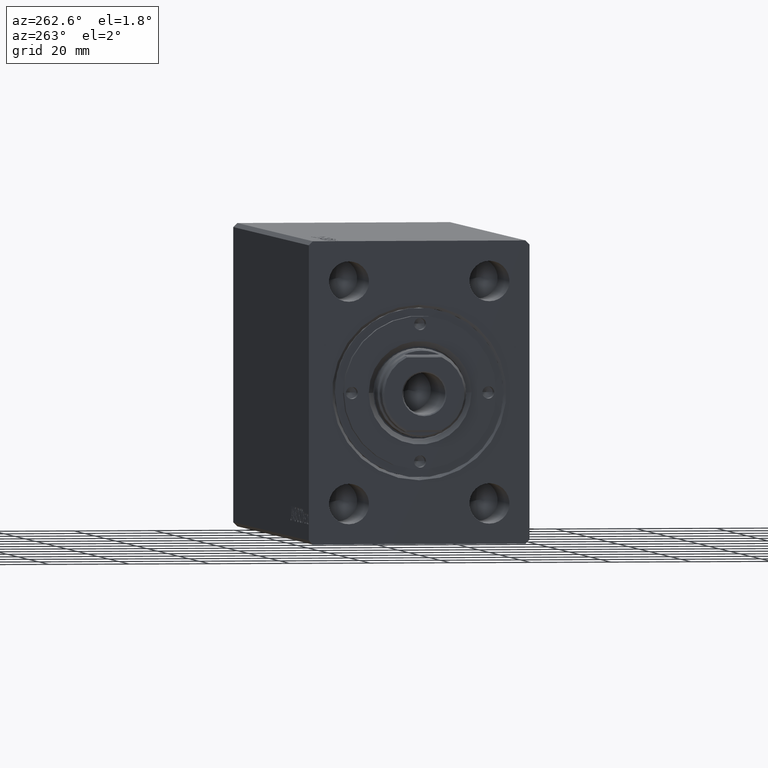
[diagram: clean part render]
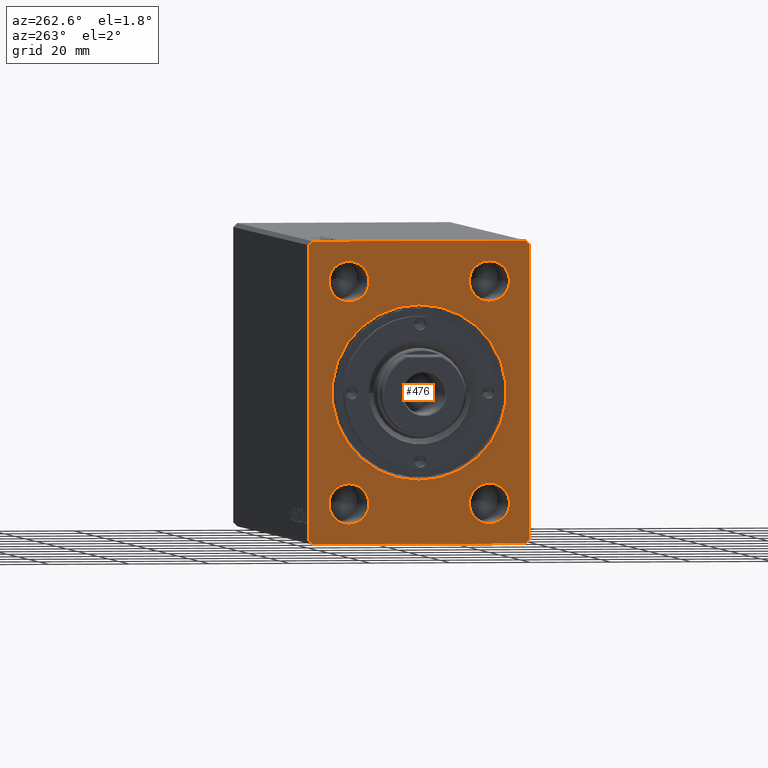
[diagram: same view with one face highlighted and labeled with its STEP entity id]
A machine part, auxiliary view. The second image highlights one B-rep face of the part: STEP entity #476.
In plain terms, the highlighted planar face has unit normal (1, 0, 0).
Its self-contained STEP definition (entity closure, byte-faithful):
#98 = VERTEX_POINT ( 'NONE', #12502 ) ;
#430 = CIRCLE ( 'NONE', #9714, 4.999999999999997335 ) ;
#476 = ADVANCED_FACE ( 'NONE', ( #17090, #43468, #37418, #13553, #20235, #6417 ), #6633, .F. ) ;
#971 = CARTESIAN_POINT ( 'NONE',  ( 1.224646799147350495E-16, 17.50000000000000000, 27.50000000000000000 ) ) ;
#974 = CIRCLE ( 'NONE', #29448, 21.70000000000000995 ) ;
#1295 = CARTESIAN_POINT ( 'NONE',  ( 0.000000000000000000, 0.000000000000000000, 0.000000000000000000 ) ) ;
#2010 = EDGE_LOOP ( 'NONE', ( #38683, #13724 ) ) ;
#2026 = VERTEX_POINT ( 'NONE', #5858 ) ;
#2223 = CIRCLE ( 'NONE', #13641, 4.999999999999997335 ) ;
#2628 = DIRECTION ( 'NONE',  ( 0.000000000000000000, 0.000000000000000000, -1.000000000000000000 ) ) ;
#2723 = EDGE_CURVE ( 'NONE', #38789, #4812, #32689, .T. ) ;
#3317 = EDGE_CURVE ( 'NONE', #33650, #25243, #31961, .T. ) ;
#3466 = ORIENTED_EDGE ( 'NONE', *, *, #3571, .F. ) ;
#3571 = EDGE_CURVE ( 'NONE', #33800, #98, #19737, .T. ) ;
#3574 = ORIENTED_EDGE ( 'NONE', *, *, #43470, .F. ) ;
#3988 = CIRCLE ( 'NONE', #28908, 5.000000000000000888 ) ;
#4054 = VECTOR ( 'NONE', #41204, 1000.000000000000114 ) ;
#4140 = DIRECTION ( 'NONE',  ( -1.000000000000000000, -0.000000000000000000, -0.000000000000000000 ) ) ;
#4364 = ORIENTED_EDGE ( 'NONE', *, *, #11558, .F. ) ;
#4534 = DIRECTION ( 'NONE',  ( -1.000000000000000000, -0.000000000000000000, -0.000000000000000000 ) ) ;
#4812 = VERTEX_POINT ( 'NONE', #21438 ) ;
#5021 = CARTESIAN_POINT ( 'NONE',  ( 0.000000000000000000, 26.50000000000000711, -37.49999999999999289 ) ) ;
#5160 = CARTESIAN_POINT ( 'NONE',  ( 1.224646799147350495E-16, 17.50000000000000000, 32.50000000000000000 ) ) ;
#5266 = LINE ( 'NONE', #18423, #17243 ) ;
#5289 = DIRECTION ( 'NONE',  ( 0.000000000000000000, -4.752667057470704875E-17, 1.000000000000000000 ) ) ;
#5858 = CARTESIAN_POINT ( 'NONE',  ( 0.000000000000000000, 26.50000000000000355, 37.50000000000000711 ) ) ;
#5891 = CARTESIAN_POINT ( 'NONE',  ( 0.000000000000000000, -26.50000000000000711, 37.50000000000000711 ) ) ;
#6417 = FACE_OUTER_BOUND ( 'NONE', #24999, .T. ) ;
#6427 = CARTESIAN_POINT ( 'NONE',  ( 0.000000000000000000, 2.657483554149757921E-15, -21.70000000000000995 ) ) ;
#6444 = CARTESIAN_POINT ( 'NONE',  ( 1.224646799147350495E-16, -17.50000000000000000, 32.50000000000000000 ) ) ;
#6524 = DIRECTION ( 'NONE',  ( 0.000000000000000000, 1.000000000000000000, 0.000000000000000000 ) ) ;
#6608 = DIRECTION ( 'NONE',  ( 1.000000000000000000, 0.000000000000000000, 0.000000000000000000 ) ) ;
#6633 = PLANE ( 'NONE',  #38327 ) ;
#7536 = DIRECTION ( 'NONE',  ( 0.000000000000000000, 0.7071067811865451302, -0.7071067811865500152 ) ) ;
#8033 = DIRECTION ( 'NONE',  ( -1.000000000000000000, -0.000000000000000000, -0.000000000000000000 ) ) ;
#8203 = CARTESIAN_POINT ( 'NONE',  ( 0.000000000000000000, 27.50000000000000711, -36.49999999999999289 ) ) ;
#8389 = CARTESIAN_POINT ( 'NONE',  ( 1.224646799147350495E-16, -17.50000000000000000, -32.49999999999999289 ) ) ;
#8422 = DIRECTION ( 'NONE',  ( 0.000000000000000000, 0.000000000000000000, -1.000000000000000000 ) ) ;
#8497 = ORIENTED_EDGE ( 'NONE', *, *, #43920, .F. ) ;
#8702 = DIRECTION ( 'NONE',  ( -1.000000000000000000, -0.000000000000000000, -0.000000000000000000 ) ) ;
#9504 = EDGE_CURVE ( 'NONE', #2026, #21214, #28927, .T. ) ;
#9714 = AXIS2_PLACEMENT_3D ( 'NONE', #10943, #8033, #21630 ) ;
#9733 = CIRCLE ( 'NONE', #38235, 4.999999999999997335 ) ;
#9784 = EDGE_CURVE ( 'NONE', #30673, #14228, #2223, .T. ) ;
#9881 = CARTESIAN_POINT ( 'NONE',  ( 0.000000000000000000, -26.50000000000000355, -37.49999999999999289 ) ) ;
#10073 = CARTESIAN_POINT ( 'NONE',  ( 0.000000000000000000, -26.50000000000000355, -37.49999999999999289 ) ) ;
#10455 = VECTOR ( 'NONE', #6524, 1000.000000000000000 ) ;
#10615 = AXIS2_PLACEMENT_3D ( 'NONE', #29609, #22912, #19115 ) ;
#10932 = ORIENTED_EDGE ( 'NONE', *, *, #22071, .T. ) ;
#10943 = CARTESIAN_POINT ( 'NONE',  ( 1.224646799147350495E-16, -17.50000000000000000, 27.50000000000000355 ) ) ;
#10996 = CARTESIAN_POINT ( 'NONE',  ( 1.224646799147350495E-16, -17.50000000000000000, 22.50000000000000711 ) ) ;
#11558 = EDGE_CURVE ( 'NONE', #21214, #33800, #5266, .T. ) ;
#12317 = DIRECTION ( 'NONE',  ( 0.000000000000000000, 0.000000000000000000, 1.000000000000000000 ) ) ;
#12461 = VECTOR ( 'NONE', #7536, 1000.000000000000114 ) ;
#12502 = CARTESIAN_POINT ( 'NONE',  ( 0.000000000000000000, -27.50000000000000355, -36.49999999999998579 ) ) ;
#13236 = DIRECTION ( 'NONE',  ( 0.000000000000000000, 0.000000000000000000, 1.000000000000000000 ) ) ;
#13553 = FACE_BOUND ( 'NONE', #25881, .T. ) ;
#13626 = ORIENTED_EDGE ( 'NONE', *, *, #44071, .F. ) ;
#13641 = AXIS2_PLACEMENT_3D ( 'NONE', #25091, #4140, #21746 ) ;
#13724 = ORIENTED_EDGE ( 'NONE', *, *, #28653, .F. ) ;
#13969 = VECTOR ( 'NONE', #5289, 1000.000000000000000 ) ;
#13985 = CIRCLE ( 'NONE', #31778, 5.000000000000000888 ) ;
#14228 = VERTEX_POINT ( 'NONE', #8389 ) ;
#14409 = CIRCLE ( 'NONE', #39333, 4.999999999999997335 ) ;
#14981 = VERTEX_POINT ( 'NONE', #6427 ) ;
#15430 = CARTESIAN_POINT ( 'NONE',  ( 0.000000000000000000, 0.000000000000000000, 21.70000000000000995 ) ) ;
#15593 = ORIENTED_EDGE ( 'NONE', *, *, #32364, .T. ) ;
#15760 = LINE ( 'NONE', #8203, #13969 ) ;
#16165 = ORIENTED_EDGE ( 'NONE', *, *, #21827, .F. ) ;
#17088 = CARTESIAN_POINT ( 'NONE',  ( 0.000000000000000000, 27.50000000000000711, -36.49999999999999289 ) ) ;
#17090 = FACE_BOUND ( 'NONE', #36010, .T. ) ;
#17243 = VECTOR ( 'NONE', #32027, 1000.000000000000114 ) ;
#18300 = CARTESIAN_POINT ( 'NONE',  ( 1.224646799147350495E-16, 17.50000000000000000, -27.49999999999999289 ) ) ;
#18326 = CARTESIAN_POINT ( 'NONE',  ( 0.000000000000000000, 26.50000000000000711, -37.49999999999999289 ) ) ;
#18423 = CARTESIAN_POINT ( 'NONE',  ( 0.000000000000000000, -26.50000000000000711, 37.50000000000000711 ) ) ;
#18496 = CARTESIAN_POINT ( 'NONE',  ( 1.224646799147350495E-16, 17.50000000000000000, 22.50000000000000355 ) ) ;
#19115 = DIRECTION ( 'NONE',  ( 0.000000000000000000, 0.000000000000000000, 1.000000000000000000 ) ) ;
#19185 = VECTOR ( 'NONE', #32667, 1000.000000000000000 ) ;
#19737 = LINE ( 'NONE', #29556, #19185 ) ;
#20235 = FACE_BOUND ( 'NONE', #27345, .T. ) ;
#20724 = VERTEX_POINT ( 'NONE', #5160 ) ;
#21214 = VERTEX_POINT ( 'NONE', #5891 ) ;
#21309 = AXIS2_PLACEMENT_3D ( 'NONE', #23694, #44029, #13236 ) ;
#21438 = CARTESIAN_POINT ( 'NONE',  ( 1.224646799147350495E-16, 17.50000000000000000, -22.49999999999999645 ) ) ;
#21630 = DIRECTION ( 'NONE',  ( 0.000000000000000000, 0.000000000000000000, 1.000000000000000000 ) ) ;
#21648 = VERTEX_POINT ( 'NONE', #10073 ) ;
#21746 = DIRECTION ( 'NONE',  ( 0.000000000000000000, 0.000000000000000000, 1.000000000000000000 ) ) ;
#21827 = EDGE_CURVE ( 'NONE', #25243, #33650, #430, .T. ) ;
#22071 = EDGE_CURVE ( 'NONE', #14981, #36422, #36764, .T. ) ;
#22096 = EDGE_CURVE ( 'NONE', #42925, #29993, #15760, .T. ) ;
#22337 = DIRECTION ( 'NONE',  ( -1.000000000000000000, -0.000000000000000000, -0.000000000000000000 ) ) ;
#22912 = DIRECTION ( 'NONE',  ( -1.000000000000000000, -0.000000000000000000, -0.000000000000000000 ) ) ;
#23694 = CARTESIAN_POINT ( 'NONE',  ( 1.224646799147350495E-16, 17.50000000000000000, -27.49999999999999289 ) ) ;
#24482 = VERTEX_POINT ( 'NONE', #18496 ) ;
#24999 = EDGE_LOOP ( 'NONE', ( #8497, #40623, #38372, #13626, #41630, #3466, #4364, #29229 ) ) ;
#25091 = CARTESIAN_POINT ( 'NONE',  ( 1.224646799147350495E-16, -17.50000000000000000, -27.49999999999999645 ) ) ;
#25243 = VERTEX_POINT ( 'NONE', #10996 ) ;
#25881 = EDGE_LOOP ( 'NONE', ( #33403, #16165 ) ) ;
#27345 = EDGE_LOOP ( 'NONE', ( #15593, #10932 ) ) ;
#27408 = CARTESIAN_POINT ( 'NONE',  ( 0.000000000000000000, 27.50000000000000355, 36.50000000000000711 ) ) ;
#27827 = CARTESIAN_POINT ( 'NONE',  ( 0.000000000000000000, -27.50000000000000355, -36.49999999999998579 ) ) ;
#27859 = EDGE_CURVE ( 'NONE', #35064, #42925, #32360, .T. ) ;
#28653 = EDGE_CURVE ( 'NONE', #14228, #30673, #14409, .T. ) ;
#28908 = AXIS2_PLACEMENT_3D ( 'NONE', #971, #4534, #39096 ) ;
#28927 = LINE ( 'NONE', #36501, #32114 ) ;
#29068 = CARTESIAN_POINT ( 'NONE',  ( 1.224646799147350495E-16, -17.50000000000000000, -22.50000000000000000 ) ) ;
#29229 = ORIENTED_EDGE ( 'NONE', *, *, #9504, .F. ) ;
#29448 = AXIS2_PLACEMENT_3D ( 'NONE', #37170, #6608, #40746 ) ;
#29556 = CARTESIAN_POINT ( 'NONE',  ( 0.000000000000000000, -27.50000000000000711, 36.50000000000000711 ) ) ;
#29609 = CARTESIAN_POINT ( 'NONE',  ( 1.224646799147350495E-16, -17.50000000000000000, 27.50000000000000355 ) ) ;
#29610 = DIRECTION ( 'NONE',  ( -1.000000000000000000, -0.000000000000000000, -0.000000000000000000 ) ) ;
#29993 = VERTEX_POINT ( 'NONE', #27408 ) ;
#30283 = CARTESIAN_POINT ( 'NONE',  ( 0.000000000000000000, 0.000000000000000000, 0.000000000000000000 ) ) ;
#30517 = CARTESIAN_POINT ( 'NONE',  ( 1.224646799147350495E-16, 17.50000000000000000, -32.49999999999998579 ) ) ;
#30673 = VERTEX_POINT ( 'NONE', #29068 ) ;
#30872 = EDGE_LOOP ( 'NONE', ( #3574, #42304 ) ) ;
#31717 = DIRECTION ( 'NONE',  ( 0.000000000000000000, 0.7071067811865474617, 0.7071067811865474617 ) ) ;
#31778 = AXIS2_PLACEMENT_3D ( 'NONE', #42791, #29610, #39428 ) ;
#31961 = CIRCLE ( 'NONE', #10615, 4.999999999999997335 ) ;
#32027 = DIRECTION ( 'NONE',  ( 0.000000000000000000, -0.7071067811865474617, -0.7071067811865474617 ) ) ;
#32114 = VECTOR ( 'NONE', #39409, 1000.000000000000000 ) ;
#32331 = DIRECTION ( 'NONE',  ( 0.000000000000000000, 0.000000000000000000, 1.000000000000000000 ) ) ;
#32360 = LINE ( 'NONE', #18326, #41480 ) ;
#32364 = EDGE_CURVE ( 'NONE', #36422, #14981, #974, .T. ) ;
#32667 = DIRECTION ( 'NONE',  ( 0.000000000000000000, 4.752667057470705491E-17, -1.000000000000000000 ) ) ;
#32689 = CIRCLE ( 'NONE', #21309, 4.999999999999997335 ) ;
#33403 = ORIENTED_EDGE ( 'NONE', *, *, #3317, .F. ) ;
#33506 = LINE ( 'NONE', #9881, #10455 ) ;
#33650 = VERTEX_POINT ( 'NONE', #6444 ) ;
#33800 = VERTEX_POINT ( 'NONE', #38323 ) ;
#33904 = ORIENTED_EDGE ( 'NONE', *, *, #42708, .F. ) ;
#35064 = VERTEX_POINT ( 'NONE', #5021 ) ;
#35948 = CARTESIAN_POINT ( 'NONE',  ( 1.224646799147350495E-16, -17.50000000000000000, -27.49999999999999645 ) ) ;
#36010 = EDGE_LOOP ( 'NONE', ( #38258, #33904 ) ) ;
#36422 = VERTEX_POINT ( 'NONE', #15430 ) ;
#36501 = CARTESIAN_POINT ( 'NONE',  ( 0.000000000000000000, 26.50000000000000355, 37.50000000000000711 ) ) ;
#36764 = CIRCLE ( 'NONE', #43188, 21.70000000000000995 ) ;
#37170 = CARTESIAN_POINT ( 'NONE',  ( 0.000000000000000000, 0.000000000000000000, 0.000000000000000000 ) ) ;
#37199 = DIRECTION ( 'NONE',  ( 1.000000000000000000, 0.000000000000000000, 0.000000000000000000 ) ) ;
#37418 = FACE_BOUND ( 'NONE', #30872, .T. ) ;
#38235 = AXIS2_PLACEMENT_3D ( 'NONE', #18300, #8702, #32331 ) ;
#38258 = ORIENTED_EDGE ( 'NONE', *, *, #42090, .F. ) ;
#38323 = CARTESIAN_POINT ( 'NONE',  ( 0.000000000000000000, -27.50000000000000711, 36.50000000000000711 ) ) ;
#38327 = AXIS2_PLACEMENT_3D ( 'NONE', #30283, #37199, #2628 ) ;
#38372 = ORIENTED_EDGE ( 'NONE', *, *, #27859, .F. ) ;
#38683 = ORIENTED_EDGE ( 'NONE', *, *, #9784, .F. ) ;
#38789 = VERTEX_POINT ( 'NONE', #30517 ) ;
#39096 = DIRECTION ( 'NONE',  ( 0.000000000000000000, 0.000000000000000000, 1.000000000000000000 ) ) ;
#39333 = AXIS2_PLACEMENT_3D ( 'NONE', #35948, #22337, #12317 ) ;
#39409 = DIRECTION ( 'NONE',  ( 0.000000000000000000, -1.000000000000000000, 0.000000000000000000 ) ) ;
#39428 = DIRECTION ( 'NONE',  ( 0.000000000000000000, 0.000000000000000000, 1.000000000000000000 ) ) ;
#39536 = EDGE_CURVE ( 'NONE', #98, #21648, #40805, .T. ) ;
#40623 = ORIENTED_EDGE ( 'NONE', *, *, #22096, .F. ) ;
#40746 = DIRECTION ( 'NONE',  ( 0.000000000000000000, 0.000000000000000000, -1.000000000000000000 ) ) ;
#40774 = CARTESIAN_POINT ( 'NONE',  ( 0.000000000000000000, 27.50000000000000355, 36.50000000000000711 ) ) ;
#40805 = LINE ( 'NONE', #27827, #12461 ) ;
#41204 = DIRECTION ( 'NONE',  ( 0.000000000000000000, -0.7071067811865474617, 0.7071067811865474617 ) ) ;
#41480 = VECTOR ( 'NONE', #31717, 1000.000000000000114 ) ;
#41630 = ORIENTED_EDGE ( 'NONE', *, *, #39536, .F. ) ;
#42031 = LINE ( 'NONE', #40774, #4054 ) ;
#42090 = EDGE_CURVE ( 'NONE', #20724, #24482, #3988, .T. ) ;
#42304 = ORIENTED_EDGE ( 'NONE', *, *, #2723, .F. ) ;
#42708 = EDGE_CURVE ( 'NONE', #24482, #20724, #13985, .T. ) ;
#42791 = CARTESIAN_POINT ( 'NONE',  ( 1.224646799147350495E-16, 17.50000000000000000, 27.50000000000000000 ) ) ;
#42925 = VERTEX_POINT ( 'NONE', #17088 ) ;
#43004 = DIRECTION ( 'NONE',  ( 1.000000000000000000, 0.000000000000000000, 0.000000000000000000 ) ) ;
#43188 = AXIS2_PLACEMENT_3D ( 'NONE', #1295, #43004, #8422 ) ;
#43468 = FACE_BOUND ( 'NONE', #2010, .T. ) ;
#43470 = EDGE_CURVE ( 'NONE', #4812, #38789, #9733, .T. ) ;
#43920 = EDGE_CURVE ( 'NONE', #29993, #2026, #42031, .T. ) ;
#44029 = DIRECTION ( 'NONE',  ( -1.000000000000000000, -0.000000000000000000, -0.000000000000000000 ) ) ;
#44071 = EDGE_CURVE ( 'NONE', #21648, #35064, #33506, .T. ) ;